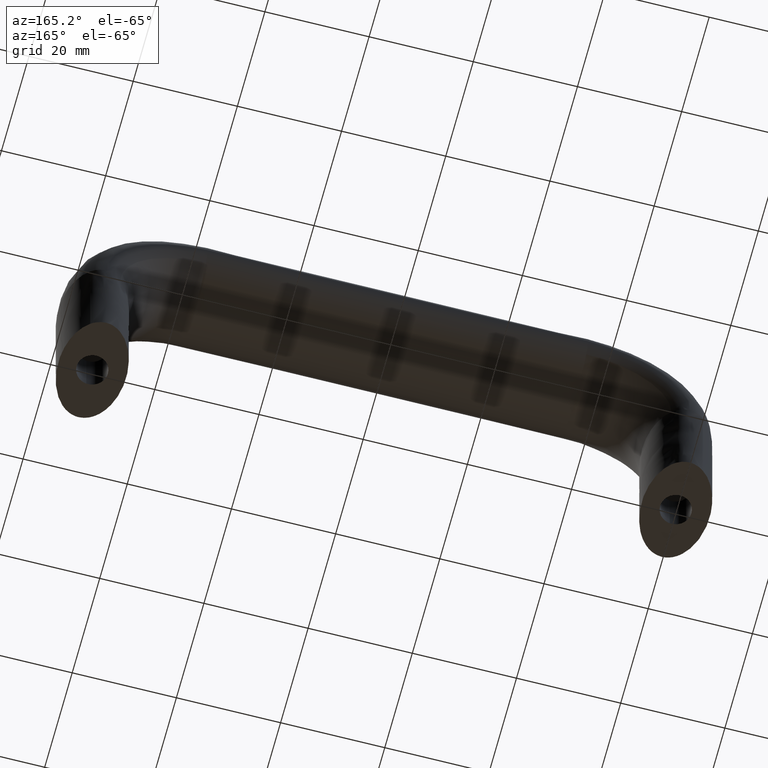
[diagram: clean part render]
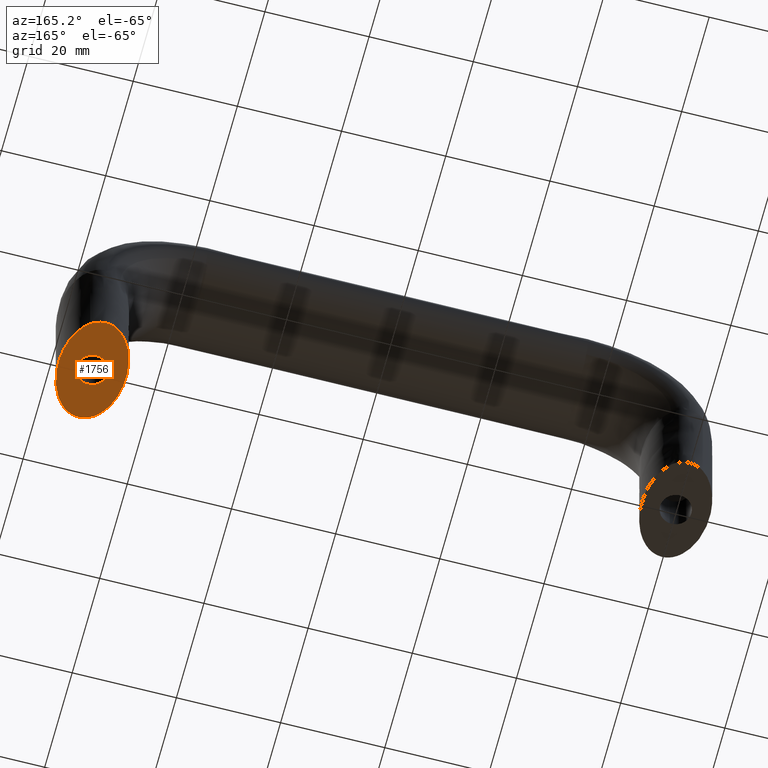
[diagram: same view with one face highlighted and labeled with its STEP entity id]
A machine part, auxiliary view. The second image highlights one B-rep face of the part: STEP entity #1756.
In plain terms, the highlighted face is a freeform B-spline surface patch.
Its self-contained STEP definition (entity closure, byte-faithful):
#271=CARTESIAN_POINT('',(112.354109704000090,-2.979028579087450,2.839428E-017));
#272=VERTEX_POINT('',#271);
#278=CARTESIAN_POINT('',(109.000007000000000,0.0,0.0));
#279=VERTEX_POINT('',#278);
#280=CARTESIAN_POINT('',(112.354109704000190,-2.979028579087450,2.839428E-017));
#281=CARTESIAN_POINT('',(112.177679358985880,-3.000000000000000,0.0));
#282=CARTESIAN_POINT('',(112.000007000000000,-3.0,0.0));
#283=CARTESIAN_POINT('',(109.000007000000000,-3.0,0.0));
#284=CARTESIAN_POINT('',(109.000007000000000,0.0,0.0));
#292=(BOUNDED_CURVE()B_SPLINE_CURVE(2,(#280,#281,#282,#283,#284),.UNSPECIFIED.,.F.,.U.)B_SPLINE_CURVE_WITH_KNOTS((3,2,3),(0.229562473512256,0.250000000000000,0.500000000000000),.UNSPECIFIED.)CURVE()GEOMETRIC_REPRESENTATION_ITEM()RATIONAL_B_SPLINE_CURVE((0.956026754181245,0.976055948329678,1.0,0.707106781186548,1.0))REPRESENTATION_ITEM(''));
#293=EDGE_CURVE('',#272,#279,#292,.T.);
#295=CARTESIAN_POINT('',(111.816861380917500,2.994404395236368,2.775558E-017));
#296=VERTEX_POINT('',#295);
#297=CARTESIAN_POINT('',(109.000007000000000,0.0,0.0));
#298=CARTESIAN_POINT('',(109.000007000000000,2.822118199814505,0.0));
#299=CARTESIAN_POINT('',(111.816861380917490,2.994404395236368,2.775558E-017));
#307=(BOUNDED_CURVE()B_SPLINE_CURVE(2,(#297,#298,#299),.UNSPECIFIED.,.F.,.U.)B_SPLINE_CURVE_WITH_KNOTS((3,3),(0.500000000000000,0.739332962186887),.UNSPECIFIED.)CURVE()GEOMETRIC_REPRESENTATION_ITEM()RATIONAL_B_SPLINE_CURVE((1.0,0.719603993347698,0.976072041555151))REPRESENTATION_ITEM(''));
#308=EDGE_CURVE('',#279,#296,#307,.T.);
#382=CARTESIAN_POINT('',(115.000007000000000,0.0,0.0));
#383=VERTEX_POINT('',#382);
#384=CARTESIAN_POINT('',(111.816861380917520,2.994404395236368,2.775558E-017));
#385=CARTESIAN_POINT('',(111.908348709624950,2.999999999999999,0.0));
#386=CARTESIAN_POINT('',(112.000007000000000,3.0,0.0));
#387=CARTESIAN_POINT('',(115.000007000000000,3.0,0.0));
#388=CARTESIAN_POINT('',(115.000007000000000,0.0,0.0));
#396=(BOUNDED_CURVE()B_SPLINE_CURVE(2,(#384,#385,#386,#387,#388),.UNSPECIFIED.,.F.,.U.)B_SPLINE_CURVE_WITH_KNOTS((3,2,3),(0.739332962186886,0.750000000000000,1.0),.UNSPECIFIED.)CURVE()GEOMETRIC_REPRESENTATION_ITEM()RATIONAL_B_SPLINE_CURVE((0.976072041555150,0.987502787838849,1.0,0.707106781186548,1.0))REPRESENTATION_ITEM(''));
#397=EDGE_CURVE('',#296,#383,#396,.T.);
#399=CARTESIAN_POINT('',(115.000007000000000,0.0,0.0));
#400=CARTESIAN_POINT('',(115.000007000000000,-2.664523577800308,0.0));
#401=CARTESIAN_POINT('',(112.354109704000210,-2.979028579087450,2.839428E-017));
#409=(BOUNDED_CURVE()B_SPLINE_CURVE(2,(#399,#400,#401),.UNSPECIFIED.,.F.,.U.)B_SPLINE_CURVE_WITH_KNOTS((3,3),(0.0,0.229562473512256),.UNSPECIFIED.)CURVE()GEOMETRIC_REPRESENTATION_ITEM()RATIONAL_B_SPLINE_CURVE((1.0,0.731050832856870,0.956026754181245))REPRESENTATION_ITEM(''));
#410=EDGE_CURVE('',#383,#272,#409,.T.);
#474=CARTESIAN_POINT('',(112.000006999999900,-10.0,2.244912E-030));
#475=VERTEX_POINT('',#474);
#483=CARTESIAN_POINT('',(114.767738318565410,9.043088331009688,-1.134627E-015));
#484=VERTEX_POINT('',#483);
#485=CARTESIAN_POINT('',(114.767738318565410,9.043088331009688,-1.134627E-015));
#486=CARTESIAN_POINT('',(115.788920819797000,8.305512380343776,-1.296863E-015));
#487=CARTESIAN_POINT('',(116.593839128239910,7.067798397806549,-1.403065E-015));
#488=CARTESIAN_POINT('',(117.507972283724000,5.662145952613331,-1.523677E-015));
#489=CARTESIAN_POINT('',(118.003266680682600,3.824125052805747,-1.553479E-015));
#490=CARTESIAN_POINT('',(118.498187716440100,1.987489683896856,-1.583258E-015));
#491=CARTESIAN_POINT('',(118.498549664109310,-0.002017246560430,-1.517621E-015));
#492=CARTESIAN_POINT('',(118.498911338936300,-1.990024453442261,-1.452033E-015));
#493=CARTESIAN_POINT('',(118.004285734044500,-3.828133019279799,-1.300950E-015));
#494=CARTESIAN_POINT('',(117.510032986190000,-5.664855988198845,-1.149981E-015));
#495=CARTESIAN_POINT('',(116.595722093327000,-7.071730822781693,-9.364523E-016));
#496=CARTESIAN_POINT('',(115.682100423284000,-8.477545131619518,-7.230850E-016));
#497=CARTESIAN_POINT('',(114.487299787594910,-9.239002294770245,-4.796195E-016));
#498=CARTESIAN_POINT('',(113.293477871423900,-9.999835711192327,-2.363533E-016));
#499=CARTESIAN_POINT('',(112.000006999999900,-10.0,2.244912E-030));
#500=B_SPLINE_CURVE_WITH_KNOTS('',2,(#485,#486,#487,#488,#489,#490,#491,#492,#493,#494,#495,#496,#497,#498,#499),.UNSPECIFIED.,.F.,.U.,(3,2,2,2,2,2,2,3),(0.140017178742989,0.250000000000000,0.375000000000000,0.500000000000000,0.625000000000000,0.750000000000000,0.875000000000000,1.0),.UNSPECIFIED.);
#501=EDGE_CURVE('',#484,#475,#500,.T.);
#572=CARTESIAN_POINT('',(112.000007000000000,10.0,8.618537E-030));
#573=VERTEX_POINT('',#572);
#574=CARTESIAN_POINT('',(112.000007000000000,10.0,8.618537E-030));
#575=CARTESIAN_POINT('',(113.291915429178100,9.998305116526256,-4.978644E-016));
#576=CARTESIAN_POINT('',(114.485151365502110,9.235614506321081,-1.012014E-015));
#577=CARTESIAN_POINT('',(114.628461116251100,9.144014012303275,-1.073765E-015));
#578=CARTESIAN_POINT('',(114.767738318565410,9.043088331009688,-1.134627E-015));
#579=B_SPLINE_CURVE_WITH_KNOTS('',2,(#574,#575,#576,#577,#578),.UNSPECIFIED.,.F.,.U.,(3,2,3),(0.0,0.125000000000000,0.140017178742989),.UNSPECIFIED.);
#580=EDGE_CURVE('',#573,#484,#579,.T.);
#582=CARTESIAN_POINT('',(112.000007000000000,-9.999999999999991,1.587388E-029));
#583=CARTESIAN_POINT('',(110.707017830725600,-9.999801078588794,2.300491E-016));
#584=CARTESIAN_POINT('',(109.512564689626900,-9.238795325112873,4.425666E-016));
#585=CARTESIAN_POINT('',(108.318466070450900,-8.478015443388268,6.550211E-016));
#586=CARTESIAN_POINT('',(107.403812922287400,-7.071067811865460,8.177565E-016));
#587=CARTESIAN_POINT('',(106.489849254913300,-5.665180760919555,9.803692E-016));
#588=CARTESIAN_POINT('',(105.994790038676600,-3.826834323650862,1.068450E-015));
#589=CARTESIAN_POINT('',(105.500104006350200,-1.989873662647768,1.156465E-015));
#590=CARTESIAN_POINT('',(105.500007000000000,3.126568E-014,1.156482E-015));
#591=CARTESIAN_POINT('',(105.499910066774800,1.988373662611578,1.156500E-015));
#592=CARTESIAN_POINT('',(105.994790038676700,3.826834323650932,1.068450E-015));
#593=CARTESIAN_POINT('',(106.489296961810990,5.663909122415067,9.804675E-016));
#594=CARTESIAN_POINT('',(107.403812922287500,7.071067811865508,8.177565E-016));
#595=CARTESIAN_POINT('',(108.317639505402700,8.477165761661174,6.551681E-016));
#596=CARTESIAN_POINT('',(109.512564689626900,9.238795325112887,4.425666E-016));
#597=CARTESIAN_POINT('',(110.706511052322700,9.999801000623132,2.301393E-016));
#598=CARTESIAN_POINT('',(112.000007000000000,9.999999999999996,3.680255E-030));
#599=B_SPLINE_CURVE_WITH_KNOTS('',2,(#582,#583,#584,#585,#586,#587,#588,#589,#590,#591,#592,#593,#594,#595,#596,#597,#598),.UNSPECIFIED.,.F.,.U.,(3,2,2,2,2,2,2,2,3),(0.0,0.125000000000000,0.250000000000000,0.375000000000000,0.500000000000000,0.625000000000000,0.750000000000000,0.875000000000000,1.0),.UNSPECIFIED.);
#600=EDGE_CURVE('',#475,#573,#599,.T.);
#1740=CARTESIAN_POINT('',(104.893166102792310,11.026340128273750,8.618537E-030));
#1741=CARTESIAN_POINT('',(104.808540582820900,-10.971334774477560,8.618537E-030));
#1742=CARTESIAN_POINT('',(119.189673441372700,10.971341162580700,8.618537E-030));
#1743=CARTESIAN_POINT('',(119.105047921401290,-11.026333740170600,8.618537E-030));
#1744=B_SPLINE_SURFACE_WITH_KNOTS('',1,1,((#1740,#1742),(#1741,#1743)),.UNSPECIFIED.,.F.,.F.,.U.,(2,2),(2,2),(0.0,21.997837680230418),(0.0,14.296613129280310),.UNSPECIFIED.);
#1745=ORIENTED_EDGE('',*,*,#580,.T.);
#1746=ORIENTED_EDGE('',*,*,#501,.T.);
#1747=ORIENTED_EDGE('',*,*,#600,.T.);
#1748=EDGE_LOOP('',(#1745,#1746,#1747));
#1749=FACE_OUTER_BOUND('',#1748,.T.);
#1750=ORIENTED_EDGE('',*,*,#308,.F.);
#1751=ORIENTED_EDGE('',*,*,#293,.F.);
#1752=ORIENTED_EDGE('',*,*,#410,.F.);
#1753=ORIENTED_EDGE('',*,*,#397,.F.);
#1754=EDGE_LOOP('',(#1750,#1751,#1752,#1753));
#1755=FACE_BOUND('',#1754,.T.);
#1756=ADVANCED_FACE('',(#1749,#1755),#1744,.F.);